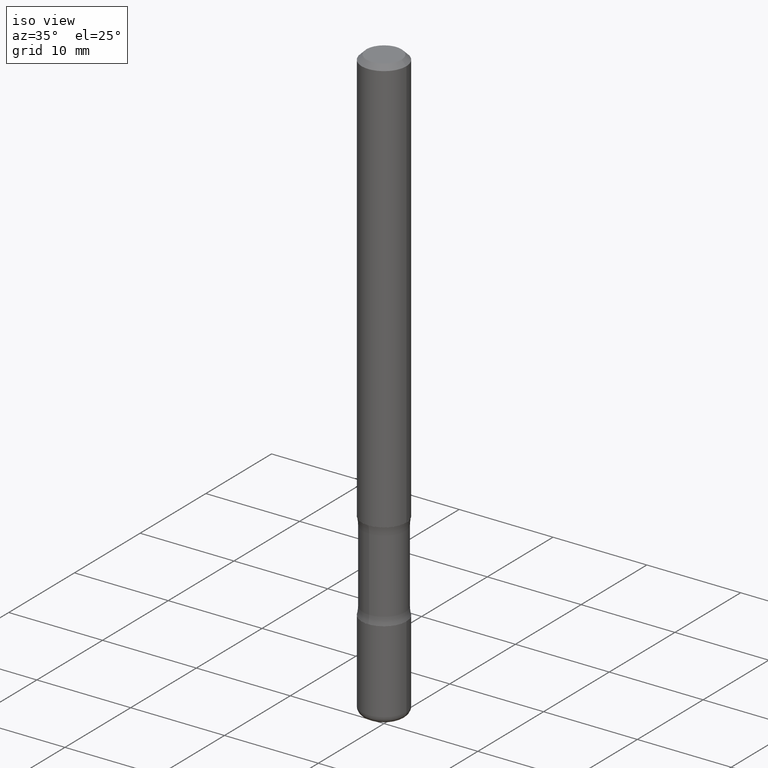
[diagram: clean part render]
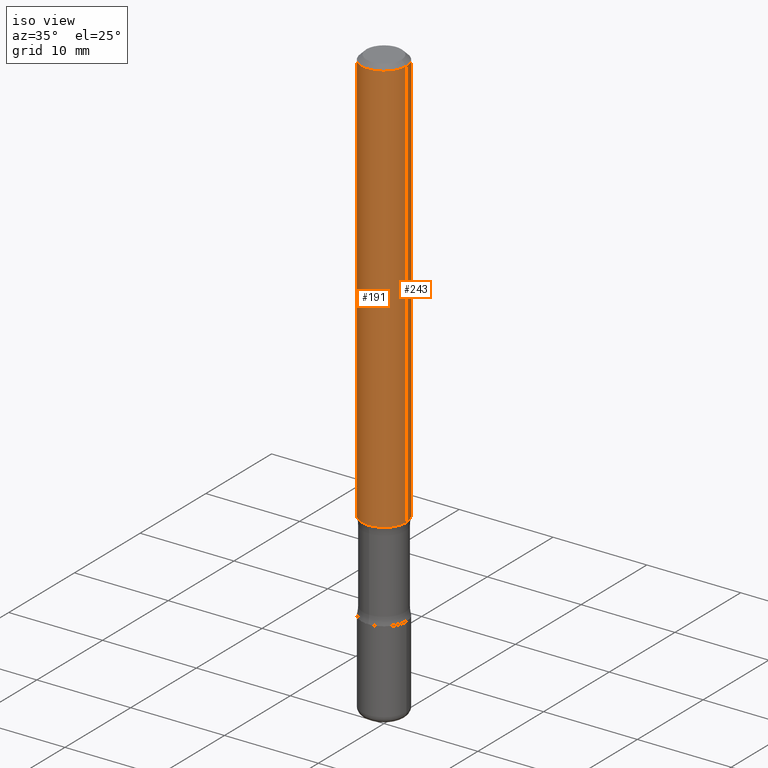
[diagram: same view with one multi-face feature highlighted, each face labeled with its STEP entity id]
A machine part, iso view. The highlighted faces form ONE feature: a constant-radius fillet chain: 2 tangent blend faces with common blend radius 2.3812 mm. The faces share edges in the B-rep.
Their STEP definitions:
[1] entity #243 (Cylinder):
#21 = DIRECTION ( 'NONE',  ( 1.000000000000000000, -6.982962677686266711E-15, 4.876176775795935793E-29 ) ) ;
#28 = CARTESIAN_POINT ( 'NONE',  ( -0.09375000000000004163, -2.423827170101085722E-15, -1.750000000000000000 ) ) ;
#37 = ORIENTED_EDGE ( 'NONE', *, *, #308, .T. ) ;
#68 = ORIENTED_EDGE ( 'NONE', *, *, #336, .F. ) ;
#96 = LINE ( 'NONE', #490, #470 ) ;
#110 = CARTESIAN_POINT ( 'NONE',  ( -0.09374999999999981959, 5.848231242562233185E-16, -0.02000000000000001776 ) ) ;
#156 = CARTESIAN_POINT ( 'NONE',  ( 4.890937612370276662E-31, -6.982962677686296539E-17, -0.02000000000000001776 ) ) ;
#169 = EDGE_CURVE ( 'NONE', #440, #430, #96, .T. ) ;
#178 = ORIENTED_EDGE ( 'NONE', *, *, #169, .F. ) ;
#181 = DIRECTION ( 'NONE',  ( -2.445468806185136597E-29, 3.491481338843145583E-15, 1.000000000000000000 ) ) ;
#194 = DIRECTION ( 'NONE',  ( -2.445468806185136597E-29, 3.491481338843145583E-15, 1.000000000000000000 ) ) ;
#202 = CIRCLE ( 'NONE', #524, 0.09374999999999981959 ) ;
#204 = CARTESIAN_POINT ( 'NONE',  ( 0.09375000000000004163, -6.764745094008592175E-15, -1.750000000000000000 ) ) ;
#206 = DIRECTION ( 'NONE',  ( 1.000000000000000000, -6.982962677686269866E-15, 0.000000000000000000 ) ) ;
#243 = ADVANCED_FACE ( 'NONE', ( #486 ), #418, .T. ) ;
#257 = CARTESIAN_POINT ( 'NONE',  ( 0.09374999999999981959, -7.130013140679428044E-16, -0.02000000000000001776 ) ) ;
#260 = VERTEX_POINT ( 'NONE', #28 ) ;
#284 = DIRECTION ( 'NONE',  ( -2.445468806185136877E-29, 3.491481338843145188E-15, 1.000000000000000000 ) ) ;
#308 = EDGE_CURVE ( 'NONE', #260, #352, #422, .T. ) ;
#336 = EDGE_CURVE ( 'NONE', #430, #352, #202, .T. ) ;
#349 = EDGE_LOOP ( 'NONE', ( #362, #37, #68, #178 ) ) ;
#352 = VERTEX_POINT ( 'NONE', #110 ) ;
#361 = DIRECTION ( 'NONE',  ( -2.445468806185136877E-29, 3.491481338843145188E-15, 1.000000000000000000 ) ) ;
#362 = ORIENTED_EDGE ( 'NONE', *, *, #527, .T. ) ;
#385 = CARTESIAN_POINT ( 'NONE',  ( -0.09374999999999991673, 6.661338147750933326E-16, -4.611501647113969791E-30 ) ) ;
#412 = CARTESIAN_POINT ( 'NONE',  ( 0.000000000000000000, 0.000000000000000000, 0.000000000000000000 ) ) ;
#418 = CYLINDRICAL_SURFACE ( 'NONE', #483, 0.09374999999999991673 ) ;
#422 = LINE ( 'NONE', #385, #538 ) ;
#430 = VERTEX_POINT ( 'NONE', #257 ) ;
#435 = AXIS2_PLACEMENT_3D ( 'NONE', #438, #515, #206 ) ;
#438 = CARTESIAN_POINT ( 'NONE',  ( 4.279570410823988484E-29, -6.110092342975504671E-15, -1.750000000000000000 ) ) ;
#440 = VERTEX_POINT ( 'NONE', #204 ) ;
#445 = CIRCLE ( 'NONE', #435, 0.09375000000000004163 ) ;
#470 = VECTOR ( 'NONE', #361, 39.37007874015748143 ) ;
#483 = AXIS2_PLACEMENT_3D ( 'NONE', #412, #181, #21 ) ;
#486 = FACE_OUTER_BOUND ( 'NONE', #349, .T. ) ;
#490 = CARTESIAN_POINT ( 'NONE',  ( 0.09374999999999991673, -6.546527510330869125E-16, 4.571415727308685602E-30 ) ) ;
#505 = DIRECTION ( 'NONE',  ( 1.000000000000000000, -6.982962677686267499E-15, 0.000000000000000000 ) ) ;
#515 = DIRECTION ( 'NONE',  ( -2.445468806185136597E-29, 3.491481338843145583E-15, 1.000000000000000000 ) ) ;
#524 = AXIS2_PLACEMENT_3D ( 'NONE', #156, #194, #505 ) ;
#527 = EDGE_CURVE ( 'NONE', #440, #260, #445, .T. ) ;
#538 = VECTOR ( 'NONE', #284, 39.37007874015748143 ) ;
[2] entity #191 (Cylinder):
#12 = EDGE_LOOP ( 'NONE', ( #543, #16, #545, #512 ) ) ;
#16 = ORIENTED_EDGE ( 'NONE', *, *, #321, .T. ) ;
#18 = DIRECTION ( 'NONE',  ( 1.000000000000000000, -6.982962677686266711E-15, 4.876176775795935793E-29 ) ) ;
#28 = CARTESIAN_POINT ( 'NONE',  ( -0.09375000000000004163, -2.423827170101085722E-15, -1.750000000000000000 ) ) ;
#53 = CYLINDRICAL_SURFACE ( 'NONE', #291, 0.09374999999999991673 ) ;
#96 = LINE ( 'NONE', #490, #470 ) ;
#101 = CARTESIAN_POINT ( 'NONE',  ( 0.000000000000000000, 0.000000000000000000, 0.000000000000000000 ) ) ;
#110 = CARTESIAN_POINT ( 'NONE',  ( -0.09374999999999981959, 5.848231242562233185E-16, -0.02000000000000001776 ) ) ;
#112 = CIRCLE ( 'NONE', #443, 0.09375000000000004163 ) ;
#169 = EDGE_CURVE ( 'NONE', #440, #430, #96, .T. ) ;
#191 = ADVANCED_FACE ( 'NONE', ( #271 ), #53, .T. ) ;
#204 = CARTESIAN_POINT ( 'NONE',  ( 0.09375000000000004163, -6.764745094008592175E-15, -1.750000000000000000 ) ) ;
#223 = CIRCLE ( 'NONE', #247, 0.09374999999999981959 ) ;
#241 = DIRECTION ( 'NONE',  ( -2.445468806185136597E-29, 3.491481338843145583E-15, 1.000000000000000000 ) ) ;
#247 = AXIS2_PLACEMENT_3D ( 'NONE', #302, #474, #348 ) ;
#257 = CARTESIAN_POINT ( 'NONE',  ( 0.09374999999999981959, -7.130013140679428044E-16, -0.02000000000000001776 ) ) ;
#260 = VERTEX_POINT ( 'NONE', #28 ) ;
#271 = FACE_OUTER_BOUND ( 'NONE', #12, .T. ) ;
#284 = DIRECTION ( 'NONE',  ( -2.445468806185136877E-29, 3.491481338843145188E-15, 1.000000000000000000 ) ) ;
#291 = AXIS2_PLACEMENT_3D ( 'NONE', #101, #460, #18 ) ;
#302 = CARTESIAN_POINT ( 'NONE',  ( 4.890937612370276662E-31, -6.982962677686296539E-17, -0.02000000000000001776 ) ) ;
#308 = EDGE_CURVE ( 'NONE', #260, #352, #422, .T. ) ;
#321 = EDGE_CURVE ( 'NONE', #260, #440, #112, .T. ) ;
#331 = CARTESIAN_POINT ( 'NONE',  ( 4.279570410823988484E-29, -6.110092342975504671E-15, -1.750000000000000000 ) ) ;
#348 = DIRECTION ( 'NONE',  ( 1.000000000000000000, -6.982962677686267499E-15, 0.000000000000000000 ) ) ;
#352 = VERTEX_POINT ( 'NONE', #110 ) ;
#361 = DIRECTION ( 'NONE',  ( -2.445468806185136877E-29, 3.491481338843145188E-15, 1.000000000000000000 ) ) ;
#385 = CARTESIAN_POINT ( 'NONE',  ( -0.09374999999999991673, 6.661338147750933326E-16, -4.611501647113969791E-30 ) ) ;
#422 = LINE ( 'NONE', #385, #538 ) ;
#430 = VERTEX_POINT ( 'NONE', #257 ) ;
#440 = VERTEX_POINT ( 'NONE', #204 ) ;
#443 = AXIS2_PLACEMENT_3D ( 'NONE', #331, #241, #467 ) ;
#460 = DIRECTION ( 'NONE',  ( -2.445468806185136597E-29, 3.491481338843145583E-15, 1.000000000000000000 ) ) ;
#467 = DIRECTION ( 'NONE',  ( 1.000000000000000000, -6.982962677686269866E-15, 0.000000000000000000 ) ) ;
#470 = VECTOR ( 'NONE', #361, 39.37007874015748143 ) ;
#474 = DIRECTION ( 'NONE',  ( -2.445468806185136597E-29, 3.491481338843145583E-15, 1.000000000000000000 ) ) ;
#490 = CARTESIAN_POINT ( 'NONE',  ( 0.09374999999999991673, -6.546527510330869125E-16, 4.571415727308685602E-30 ) ) ;
#512 = ORIENTED_EDGE ( 'NONE', *, *, #557, .F. ) ;
#538 = VECTOR ( 'NONE', #284, 39.37007874015748143 ) ;
#543 = ORIENTED_EDGE ( 'NONE', *, *, #308, .F. ) ;
#545 = ORIENTED_EDGE ( 'NONE', *, *, #169, .T. ) ;
#557 = EDGE_CURVE ( 'NONE', #352, #430, #223, .T. ) ;